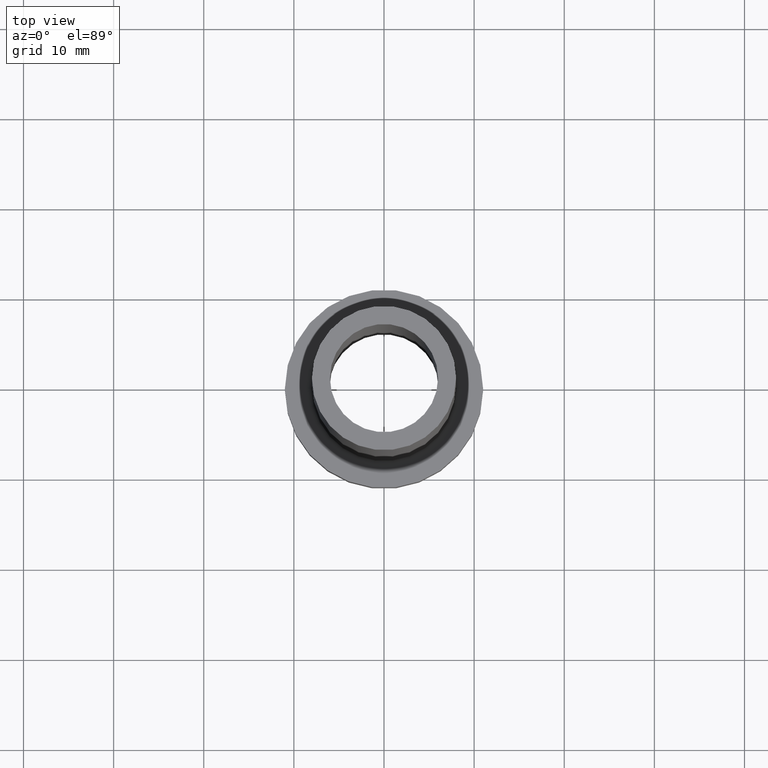
[diagram: clean part render]
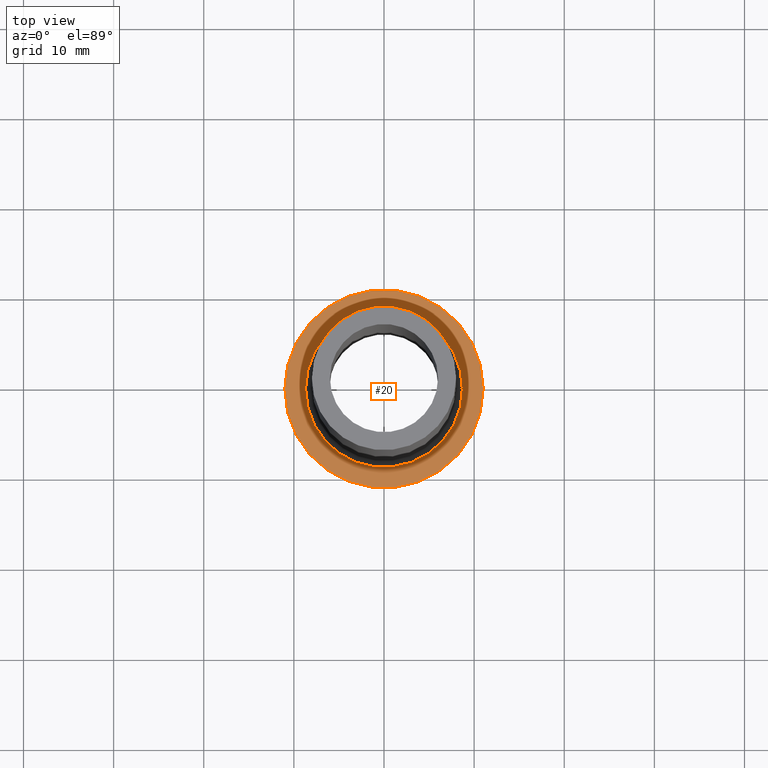
[diagram: same view with one face highlighted and labeled with its STEP entity id]
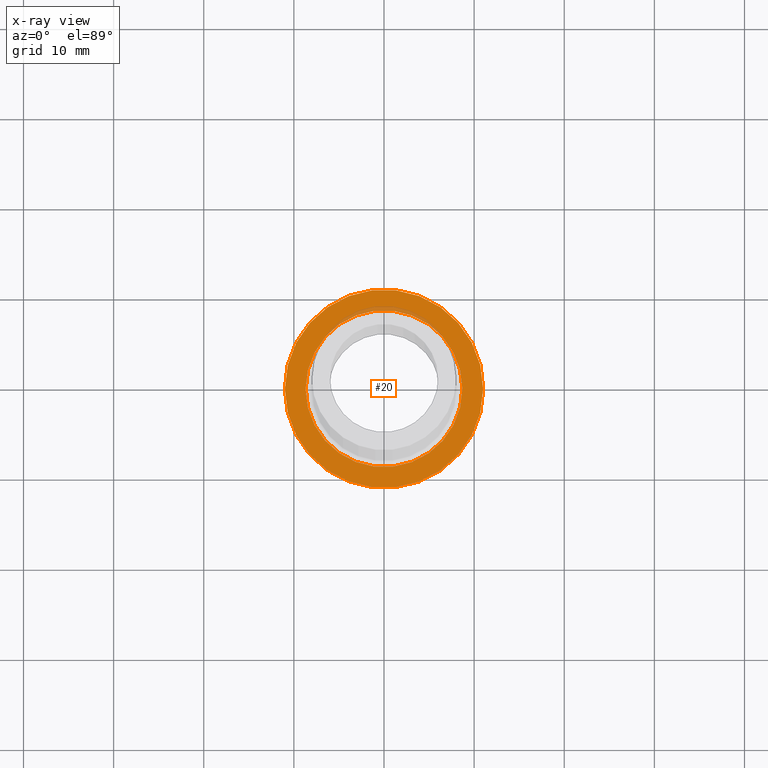
[diagram: x-ray of the same camera — body ghosted, the highlighted face saturated]
A machine part, top view. The second image highlights one B-rep face of the part: STEP entity #20.
The next image is the same camera in x-ray: the body ghosted, the highlighted face saturated — about 4% of this face is hidden behind the body in this view.
In plain terms, the highlighted planar face has unit normal (0, 0, 1).
Its self-contained STEP definition (entity closure, byte-faithful):
#15 = ORIENTED_EDGE ( 'NONE', *, *, #137, .T. ) ;
#20 = ADVANCED_FACE ( 'NONE', ( #50, #61 ), #159, .T. ) ;
#21 = DIRECTION ( 'NONE',  ( 1.000000000000000000, 0.000000000000000000, 0.000000000000000000 ) ) ;
#22 = AXIS2_PLACEMENT_3D ( 'NONE', #337, #27, #29 ) ;
#27 = DIRECTION ( 'NONE',  ( 0.000000000000000000, 0.000000000000000000, 1.000000000000000000 ) ) ;
#29 = DIRECTION ( 'NONE',  ( 1.000000000000000000, 0.000000000000000000, -0.000000000000000000 ) ) ;
#30 = CARTESIAN_POINT ( 'NONE',  ( -11.00000000000000000, 0.000000000000000000, 7.000000000000000000 ) ) ;
#37 = CARTESIAN_POINT ( 'NONE',  ( 11.00000000000000000, 1.347111479062088405E-15, 7.000000000000000000 ) ) ;
#50 = FACE_BOUND ( 'NONE', #237, .T. ) ;
#54 = DIRECTION ( 'NONE',  ( 1.000000000000000000, 0.000000000000000000, 0.000000000000000000 ) ) ;
#60 = CARTESIAN_POINT ( 'NONE',  ( 8.699999999999999289, 0.000000000000000000, 6.999999999999999112 ) ) ;
#61 = FACE_OUTER_BOUND ( 'NONE', #195, .T. ) ;
#97 = ORIENTED_EDGE ( 'NONE', *, *, #377, .T. ) ;
#105 = DIRECTION ( 'NONE',  ( -0.000000000000000000, -0.000000000000000000, -1.000000000000000000 ) ) ;
#122 = ORIENTED_EDGE ( 'NONE', *, *, #218, .T. ) ;
#125 = AXIS2_PLACEMENT_3D ( 'NONE', #313, #168, #424 ) ;
#127 = CARTESIAN_POINT ( 'NONE',  ( 0.000000000000000000, 0.000000000000000000, 7.000000000000000000 ) ) ;
#137 = EDGE_CURVE ( 'NONE', #296, #151, #208, .T. ) ;
#151 = VERTEX_POINT ( 'NONE', #37 ) ;
#159 = PLANE ( 'NONE',  #22 ) ;
#166 = VERTEX_POINT ( 'NONE', #60 ) ;
#168 = DIRECTION ( 'NONE',  ( 0.000000000000000000, 0.000000000000000000, 1.000000000000000000 ) ) ;
#185 = EDGE_CURVE ( 'NONE', #151, #296, #381, .T. ) ;
#187 = AXIS2_PLACEMENT_3D ( 'NONE', #206, #450, #21 ) ;
#195 = EDGE_LOOP ( 'NONE', ( #15, #403 ) ) ;
#206 = CARTESIAN_POINT ( 'NONE',  ( 0.000000000000000000, 0.000000000000000000, 7.000000000000000000 ) ) ;
#208 = CIRCLE ( 'NONE', #125, 11.00000000000000000 ) ;
#218 = EDGE_CURVE ( 'NONE', #451, #166, #444, .T. ) ;
#237 = EDGE_LOOP ( 'NONE', ( #97, #122 ) ) ;
#243 = DIRECTION ( 'NONE',  ( 1.000000000000000000, 0.000000000000000000, 0.000000000000000000 ) ) ;
#267 = DIRECTION ( 'NONE',  ( -0.000000000000000000, -0.000000000000000000, -1.000000000000000000 ) ) ;
#282 = AXIS2_PLACEMENT_3D ( 'NONE', #127, #267, #54 ) ;
#296 = VERTEX_POINT ( 'NONE', #30 ) ;
#313 = CARTESIAN_POINT ( 'NONE',  ( 0.000000000000000000, 0.000000000000000000, 7.000000000000000000 ) ) ;
#337 = CARTESIAN_POINT ( 'NONE',  ( 0.000000000000000000, 0.000000000000000000, 7.000000000000000000 ) ) ;
#345 = CIRCLE ( 'NONE', #445, 8.699999999999999289 ) ;
#352 = CARTESIAN_POINT ( 'NONE',  ( -8.699999999999999289, 1.065442715258197248E-15, 6.999999999999999112 ) ) ;
#377 = EDGE_CURVE ( 'NONE', #166, #451, #345, .T. ) ;
#381 = CIRCLE ( 'NONE', #187, 11.00000000000000000 ) ;
#403 = ORIENTED_EDGE ( 'NONE', *, *, #185, .T. ) ;
#424 = DIRECTION ( 'NONE',  ( 1.000000000000000000, 0.000000000000000000, 0.000000000000000000 ) ) ;
#425 = CARTESIAN_POINT ( 'NONE',  ( 0.000000000000000000, 0.000000000000000000, 7.000000000000000000 ) ) ;
#444 = CIRCLE ( 'NONE', #282, 8.699999999999999289 ) ;
#445 = AXIS2_PLACEMENT_3D ( 'NONE', #425, #105, #243 ) ;
#450 = DIRECTION ( 'NONE',  ( 0.000000000000000000, 0.000000000000000000, 1.000000000000000000 ) ) ;
#451 = VERTEX_POINT ( 'NONE', #352 ) ;